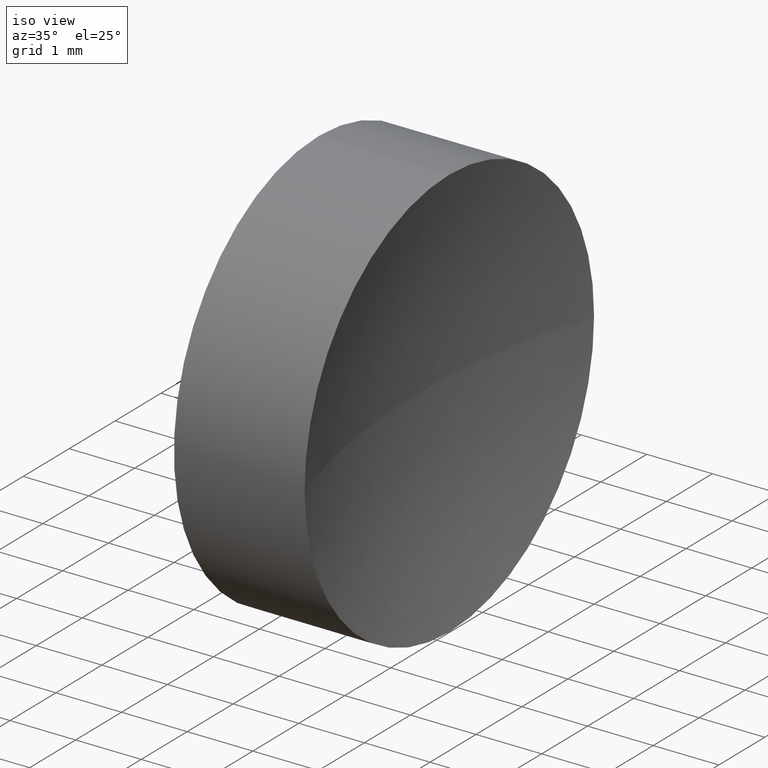
[diagram: clean part render]
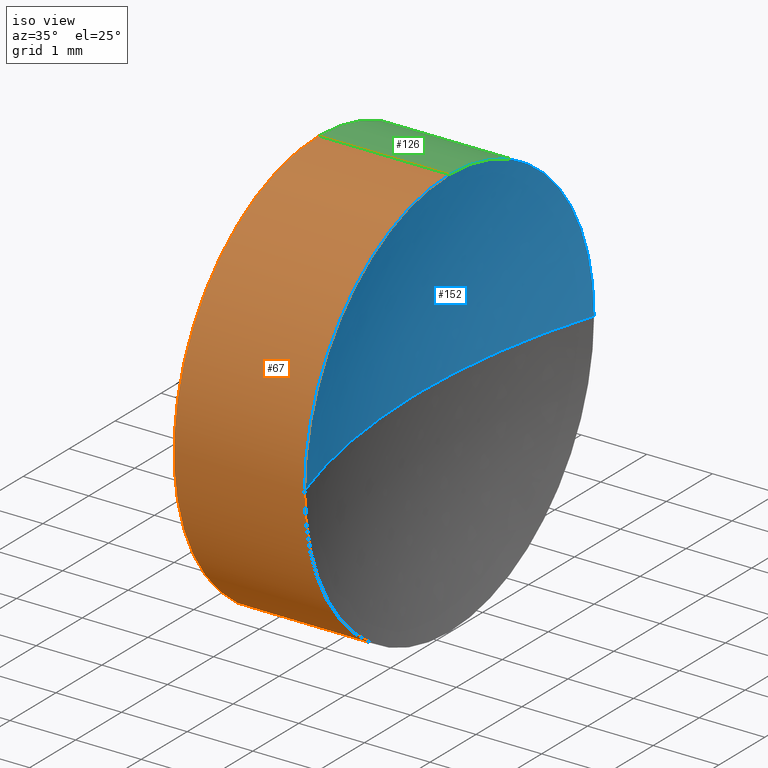
[diagram: same view with three faces highlighted in distinct colors, each labeled with its STEP entity id]
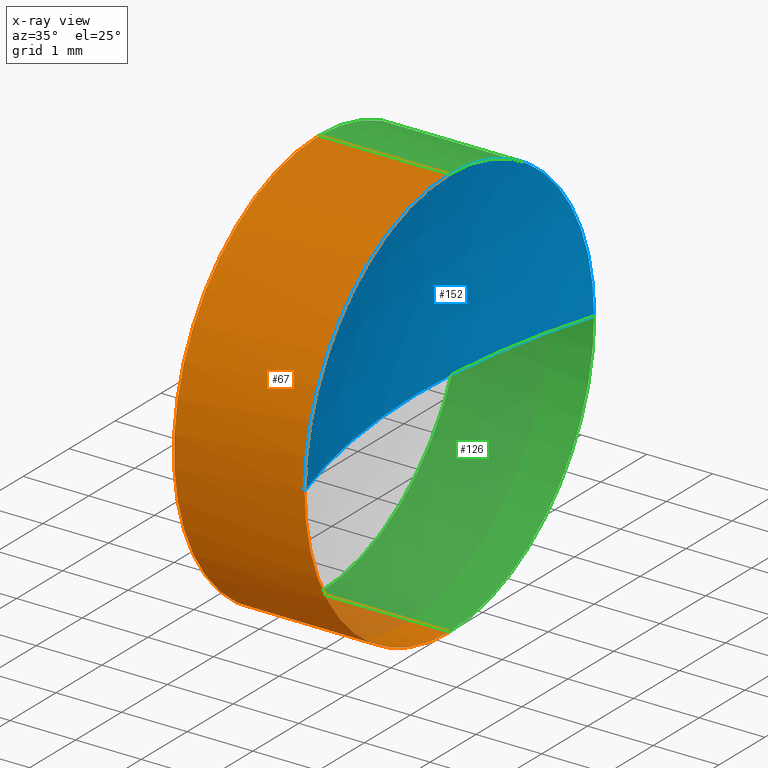
[diagram: x-ray of the same camera — body ghosted, the three highlighted faces saturated]
A machine part, iso view with three faces highlighted in distinct colors.
The next image is the same camera in x-ray (body ghosted, the three faces saturated) — at least one of them is partly hidden behind the body in this view.
Their STEP definitions:

[orange] entity #67 — the highlighted cylindrical surface (partial cylindrical patch) has radius 3.15 mm, axis along (-1, -0, -0).
#4 = CARTESIAN_POINT ( 'NONE',  ( 21.22493055706841100, 13.04452057459747900, 3.150000000000001700 ) ) ;
#5 = DIRECTION ( 'NONE',  ( 0.0000000000000000000, 0.0000000000000000000, 1.000000000000000000 ) ) ;
#8 = EDGE_CURVE ( 'NONE', #77, #24, #180, .T. ) ;
#14 = EDGE_LOOP ( 'NONE', ( #111, #163, #185, #85, #140 ) ) ;
#18 = DIRECTION ( 'NONE',  ( 0.0000000000000000000, 0.0000000000000000000, 1.000000000000000000 ) ) ;
#19 = DIRECTION ( 'NONE',  ( -1.000000000000000000, -0.0000000000000000000, -0.0000000000000000000 ) ) ;
#24 = VERTEX_POINT ( 'NONE', #73 ) ;
#25 = CARTESIAN_POINT ( 'NONE',  ( 24.16218947520228300, 13.04452057459747900, 3.150000000000001700 ) ) ;
#29 = EDGE_CURVE ( 'NONE', #77, #158, #104, .T. ) ;
#30 = VECTOR ( 'NONE', #53, 1000.000000000000000 ) ;
#36 = CARTESIAN_POINT ( 'NONE',  ( 24.16218947520228300, 13.04452057459747900, -3.150000000000001700 ) ) ;
#37 = DIRECTION ( 'NONE',  ( 0.0000000000000000000, 0.0000000000000000000, 1.000000000000000000 ) ) ;
#48 = CARTESIAN_POINT ( 'NONE',  ( 22.17218947520228100, 13.04452057459747900, -3.150000000000001700 ) ) ;
#49 = AXIS2_PLACEMENT_3D ( 'NONE', #177, #165, #18 ) ;
#51 = EDGE_CURVE ( 'NONE', #24, #167, #166, .T. ) ;
#53 = DIRECTION ( 'NONE',  ( -1.000000000000000000, -0.0000000000000000000, -0.0000000000000000000 ) ) ;
#55 = VERTEX_POINT ( 'NONE', #98 ) ;
#60 = AXIS2_PLACEMENT_3D ( 'NONE', #135, #186, #63 ) ;
#63 = DIRECTION ( 'NONE',  ( 0.0000000000000000000, 0.0000000000000000000, 1.000000000000000000 ) ) ;
#65 = VECTOR ( 'NONE', #168, 1000.000000000000000 ) ;
#67 = ADVANCED_FACE ( 'NONE', ( #169 ), #143, .T. ) ;
#71 = CARTESIAN_POINT ( 'NONE',  ( 24.16218947520228300, 13.04452057459747900, 0.0000000000000000000 ) ) ;
#73 = CARTESIAN_POINT ( 'NONE',  ( 24.16218947520228300, 9.894520574597477100, 0.0000000000000000000 ) ) ;
#74 = AXIS2_PLACEMENT_3D ( 'NONE', #71, #179, #5 ) ;
#75 = LINE ( 'NONE', #4, #30 ) ;
#77 = VERTEX_POINT ( 'NONE', #36 ) ;
#85 = ORIENTED_EDGE ( 'NONE', *, *, #96, .T. ) ;
#96 = EDGE_CURVE ( 'NONE', #167, #55, #75, .T. ) ;
#98 = CARTESIAN_POINT ( 'NONE',  ( 22.17218947520228100, 13.04452057459747900, 3.150000000000001700 ) ) ;
#104 = LINE ( 'NONE', #157, #65 ) ;
#106 = CIRCLE ( 'NONE', #60, 3.150000000000001700 ) ;
#111 = ORIENTED_EDGE ( 'NONE', *, *, #29, .F. ) ;
#127 = EDGE_CURVE ( 'NONE', #158, #55, #106, .T. ) ;
#135 = CARTESIAN_POINT ( 'NONE',  ( 22.17218947520228100, 13.04452057459747900, 0.0000000000000000000 ) ) ;
#140 = ORIENTED_EDGE ( 'NONE', *, *, #127, .F. ) ;
#143 = CYLINDRICAL_SURFACE ( 'NONE', #49, 3.150000000000001700 ) ;
#144 = CARTESIAN_POINT ( 'NONE',  ( 24.16218947520228300, 13.04452057459747900, 0.0000000000000000000 ) ) ;
#157 = CARTESIAN_POINT ( 'NONE',  ( 21.22493055706841100, 13.04452057459747900, -3.150000000000001700 ) ) ;
#158 = VERTEX_POINT ( 'NONE', #48 ) ;
#163 = ORIENTED_EDGE ( 'NONE', *, *, #8, .T. ) ;
#165 = DIRECTION ( 'NONE',  ( -1.000000000000000000, -0.0000000000000000000, -0.0000000000000000000 ) ) ;
#166 = CIRCLE ( 'NONE', #175, 3.150000000000001700 ) ;
#167 = VERTEX_POINT ( 'NONE', #25 ) ;
#168 = DIRECTION ( 'NONE',  ( -1.000000000000000000, -0.0000000000000000000, -0.0000000000000000000 ) ) ;
#169 = FACE_OUTER_BOUND ( 'NONE', #14, .T. ) ;
#175 = AXIS2_PLACEMENT_3D ( 'NONE', #144, #19, #37 ) ;
#177 = CARTESIAN_POINT ( 'NONE',  ( 21.22493055706841100, 13.04452057459747900, 0.0000000000000000000 ) ) ;
#179 = DIRECTION ( 'NONE',  ( -1.000000000000000000, -0.0000000000000000000, -0.0000000000000000000 ) ) ;
#180 = CIRCLE ( 'NONE', #74, 3.150000000000001700 ) ;
#185 = ORIENTED_EDGE ( 'NONE', *, *, #51, .T. ) ;
#186 = DIRECTION ( 'NONE',  ( -1.000000000000000000, -0.0000000000000000000, -0.0000000000000000000 ) ) ;

[blue] entity #152 — the highlighted spherical surface has radius 10.37 mm.
#1 = CARTESIAN_POINT ( 'NONE',  ( 34.04218947520227100, 13.04452057459747900, 0.0000000000000000000 ) ) ;
#6 = EDGE_LOOP ( 'NONE', ( #58, #99, #145, #94 ) ) ;
#10 = VERTEX_POINT ( 'NONE', #35 ) ;
#19 = DIRECTION ( 'NONE',  ( -1.000000000000000000, -0.0000000000000000000, -0.0000000000000000000 ) ) ;
#23 = CIRCLE ( 'NONE', #86, 10.36999999999999400 ) ;
#24 = VERTEX_POINT ( 'NONE', #73 ) ;
#25 = CARTESIAN_POINT ( 'NONE',  ( 24.16218947520228300, 13.04452057459747900, 3.150000000000001700 ) ) ;
#27 = DIRECTION ( 'NONE',  ( 0.0000000000000000000, 0.0000000000000000000, 1.000000000000000000 ) ) ;
#28 = CIRCLE ( 'NONE', #121, 3.150000000000001700 ) ;
#32 = DIRECTION ( 'NONE',  ( 0.0000000000000000000, 0.0000000000000000000, -1.000000000000000000 ) ) ;
#35 = CARTESIAN_POINT ( 'NONE',  ( 24.16218947520228300, 16.19452057459748000, 3.857637417314165200E-016 ) ) ;
#37 = DIRECTION ( 'NONE',  ( 0.0000000000000000000, 0.0000000000000000000, 1.000000000000000000 ) ) ;
#46 = CARTESIAN_POINT ( 'NONE',  ( 34.04218947520227100, 13.04452057459747900, 0.0000000000000000000 ) ) ;
#47 = DIRECTION ( 'NONE',  ( 0.0000000000000000000, -1.000000000000000000, -1.224646799147353200E-016 ) ) ;
#51 = EDGE_CURVE ( 'NONE', #24, #167, #166, .T. ) ;
#58 = ORIENTED_EDGE ( 'NONE', *, *, #184, .F. ) ;
#66 = EDGE_CURVE ( 'NONE', #167, #10, #28, .T. ) ;
#73 = CARTESIAN_POINT ( 'NONE',  ( 24.16218947520228300, 9.894520574597477100, 0.0000000000000000000 ) ) ;
#79 = SPHERICAL_SURFACE ( 'NONE', #91, 10.36999999999999400 ) ;
#86 = AXIS2_PLACEMENT_3D ( 'NONE', #115, #32, #139 ) ;
#91 = AXIS2_PLACEMENT_3D ( 'NONE', #46, #27, #92 ) ;
#92 = DIRECTION ( 'NONE',  ( 0.0000000000000000000, -1.000000000000000000, 0.0000000000000000000 ) ) ;
#94 = ORIENTED_EDGE ( 'NONE', *, *, #118, .T. ) ;
#99 = ORIENTED_EDGE ( 'NONE', *, *, #66, .F. ) ;
#100 = FACE_OUTER_BOUND ( 'NONE', #6, .T. ) ;
#103 = AXIS2_PLACEMENT_3D ( 'NONE', #1, #107, #47 ) ;
#107 = DIRECTION ( 'NONE',  ( 0.0000000000000000000, -1.224646799147353200E-016, 1.000000000000000000 ) ) ;
#115 = CARTESIAN_POINT ( 'NONE',  ( 34.04218947520227100, 13.04452057459747900, 0.0000000000000000000 ) ) ;
#116 = CARTESIAN_POINT ( 'NONE',  ( 24.16218947520228300, 13.04452057459747900, 0.0000000000000000000 ) ) ;
#118 = EDGE_CURVE ( 'NONE', #24, #171, #23, .T. ) ;
#121 = AXIS2_PLACEMENT_3D ( 'NONE', #116, #178, #128 ) ;
#128 = DIRECTION ( 'NONE',  ( 0.0000000000000000000, 0.0000000000000000000, 1.000000000000000000 ) ) ;
#134 = CARTESIAN_POINT ( 'NONE',  ( 23.67218947520228100, 13.04452057459747900, 0.0000000000000000000 ) ) ;
#139 = DIRECTION ( 'NONE',  ( -1.000000000000000000, 0.0000000000000000000, 0.0000000000000000000 ) ) ;
#144 = CARTESIAN_POINT ( 'NONE',  ( 24.16218947520228300, 13.04452057459747900, 0.0000000000000000000 ) ) ;
#145 = ORIENTED_EDGE ( 'NONE', *, *, #51, .F. ) ;
#146 = CIRCLE ( 'NONE', #103, 10.36999999999999400 ) ;
#152 = ADVANCED_FACE ( 'NONE', ( #100 ), #79, .F. ) ;
#166 = CIRCLE ( 'NONE', #175, 3.150000000000001700 ) ;
#167 = VERTEX_POINT ( 'NONE', #25 ) ;
#171 = VERTEX_POINT ( 'NONE', #134 ) ;
#175 = AXIS2_PLACEMENT_3D ( 'NONE', #144, #19, #37 ) ;
#178 = DIRECTION ( 'NONE',  ( -1.000000000000000000, -0.0000000000000000000, -0.0000000000000000000 ) ) ;
#184 = EDGE_CURVE ( 'NONE', #10, #171, #146, .T. ) ;

[green] entity #126 — the highlighted cylindrical surface (partial cylindrical patch) has radius 3.15 mm, axis along (-1, -0, -0).
#3 = DIRECTION ( 'NONE',  ( -1.000000000000000000, -0.0000000000000000000, -0.0000000000000000000 ) ) ;
#4 = CARTESIAN_POINT ( 'NONE',  ( 21.22493055706841100, 13.04452057459747900, 3.150000000000001700 ) ) ;
#7 = AXIS2_PLACEMENT_3D ( 'NONE', #50, #3, #176 ) ;
#10 = VERTEX_POINT ( 'NONE', #35 ) ;
#22 = CIRCLE ( 'NONE', #7, 3.150000000000001700 ) ;
#25 = CARTESIAN_POINT ( 'NONE',  ( 24.16218947520228300, 13.04452057459747900, 3.150000000000001700 ) ) ;
#28 = CIRCLE ( 'NONE', #121, 3.150000000000001700 ) ;
#29 = EDGE_CURVE ( 'NONE', #77, #158, #104, .T. ) ;
#30 = VECTOR ( 'NONE', #53, 1000.000000000000000 ) ;
#33 = CARTESIAN_POINT ( 'NONE',  ( 22.17218947520228100, 13.04452057459747900, 0.0000000000000000000 ) ) ;
#35 = CARTESIAN_POINT ( 'NONE',  ( 24.16218947520228300, 16.19452057459748000, 3.857637417314165200E-016 ) ) ;
#36 = CARTESIAN_POINT ( 'NONE',  ( 24.16218947520228300, 13.04452057459747900, -3.150000000000001700 ) ) ;
#43 = ORIENTED_EDGE ( 'NONE', *, *, #89, .F. ) ;
#48 = CARTESIAN_POINT ( 'NONE',  ( 22.17218947520228100, 13.04452057459747900, -3.150000000000001700 ) ) ;
#50 = CARTESIAN_POINT ( 'NONE',  ( 24.16218947520228300, 13.04452057459747900, 0.0000000000000000000 ) ) ;
#53 = DIRECTION ( 'NONE',  ( -1.000000000000000000, -0.0000000000000000000, -0.0000000000000000000 ) ) ;
#55 = VERTEX_POINT ( 'NONE', #98 ) ;
#61 = CYLINDRICAL_SURFACE ( 'NONE', #125, 3.150000000000001700 ) ;
#65 = VECTOR ( 'NONE', #168, 1000.000000000000000 ) ;
#66 = EDGE_CURVE ( 'NONE', #167, #10, #28, .T. ) ;
#68 = CIRCLE ( 'NONE', #95, 3.150000000000001700 ) ;
#70 = DIRECTION ( 'NONE',  ( 0.0000000000000000000, 0.0000000000000000000, 1.000000000000000000 ) ) ;
#75 = LINE ( 'NONE', #4, #30 ) ;
#77 = VERTEX_POINT ( 'NONE', #36 ) ;
#80 = ORIENTED_EDGE ( 'NONE', *, *, #29, .T. ) ;
#89 = EDGE_CURVE ( 'NONE', #55, #158, #68, .T. ) ;
#95 = AXIS2_PLACEMENT_3D ( 'NONE', #33, #154, #70 ) ;
#96 = EDGE_CURVE ( 'NONE', #167, #55, #75, .T. ) ;
#97 = CARTESIAN_POINT ( 'NONE',  ( 21.22493055706841100, 13.04452057459747900, 0.0000000000000000000 ) ) ;
#98 = CARTESIAN_POINT ( 'NONE',  ( 22.17218947520228100, 13.04452057459747900, 3.150000000000001700 ) ) ;
#102 = ORIENTED_EDGE ( 'NONE', *, *, #66, .T. ) ;
#104 = LINE ( 'NONE', #157, #65 ) ;
#105 = EDGE_CURVE ( 'NONE', #10, #77, #22, .T. ) ;
#116 = CARTESIAN_POINT ( 'NONE',  ( 24.16218947520228300, 13.04452057459747900, 0.0000000000000000000 ) ) ;
#117 = EDGE_LOOP ( 'NONE', ( #174, #80, #43, #120, #102 ) ) ;
#120 = ORIENTED_EDGE ( 'NONE', *, *, #96, .F. ) ;
#121 = AXIS2_PLACEMENT_3D ( 'NONE', #116, #178, #128 ) ;
#125 = AXIS2_PLACEMENT_3D ( 'NONE', #97, #153, #138 ) ;
#126 = ADVANCED_FACE ( 'NONE', ( #137 ), #61, .T. ) ;
#128 = DIRECTION ( 'NONE',  ( 0.0000000000000000000, 0.0000000000000000000, 1.000000000000000000 ) ) ;
#137 = FACE_OUTER_BOUND ( 'NONE', #117, .T. ) ;
#138 = DIRECTION ( 'NONE',  ( 0.0000000000000000000, 0.0000000000000000000, 1.000000000000000000 ) ) ;
#153 = DIRECTION ( 'NONE',  ( -1.000000000000000000, -0.0000000000000000000, -0.0000000000000000000 ) ) ;
#154 = DIRECTION ( 'NONE',  ( -1.000000000000000000, -0.0000000000000000000, -0.0000000000000000000 ) ) ;
#157 = CARTESIAN_POINT ( 'NONE',  ( 21.22493055706841100, 13.04452057459747900, -3.150000000000001700 ) ) ;
#158 = VERTEX_POINT ( 'NONE', #48 ) ;
#167 = VERTEX_POINT ( 'NONE', #25 ) ;
#168 = DIRECTION ( 'NONE',  ( -1.000000000000000000, -0.0000000000000000000, -0.0000000000000000000 ) ) ;
#174 = ORIENTED_EDGE ( 'NONE', *, *, #105, .T. ) ;
#176 = DIRECTION ( 'NONE',  ( 0.0000000000000000000, 0.0000000000000000000, 1.000000000000000000 ) ) ;
#178 = DIRECTION ( 'NONE',  ( -1.000000000000000000, -0.0000000000000000000, -0.0000000000000000000 ) ) ;